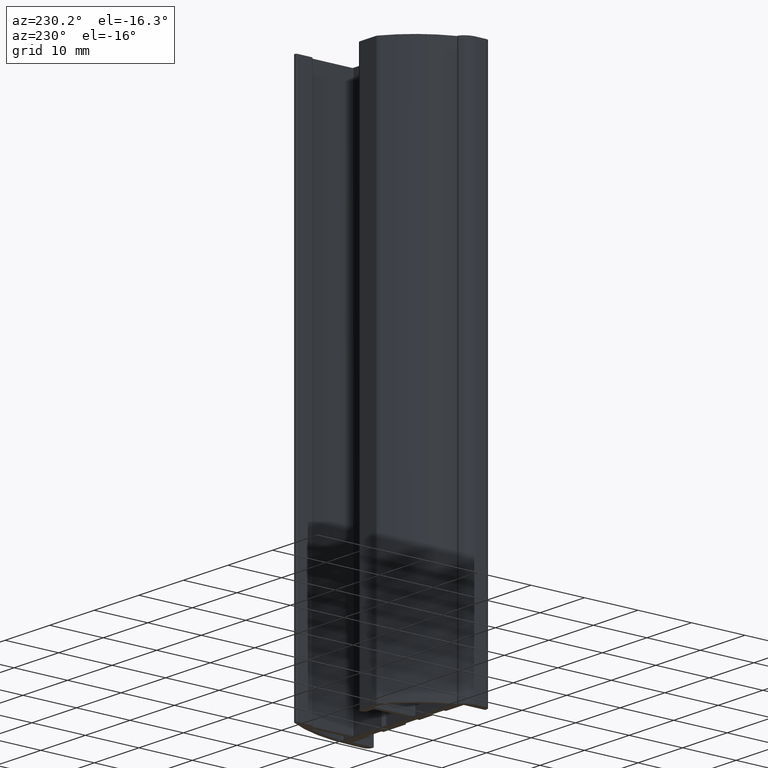
[diagram: clean part render]
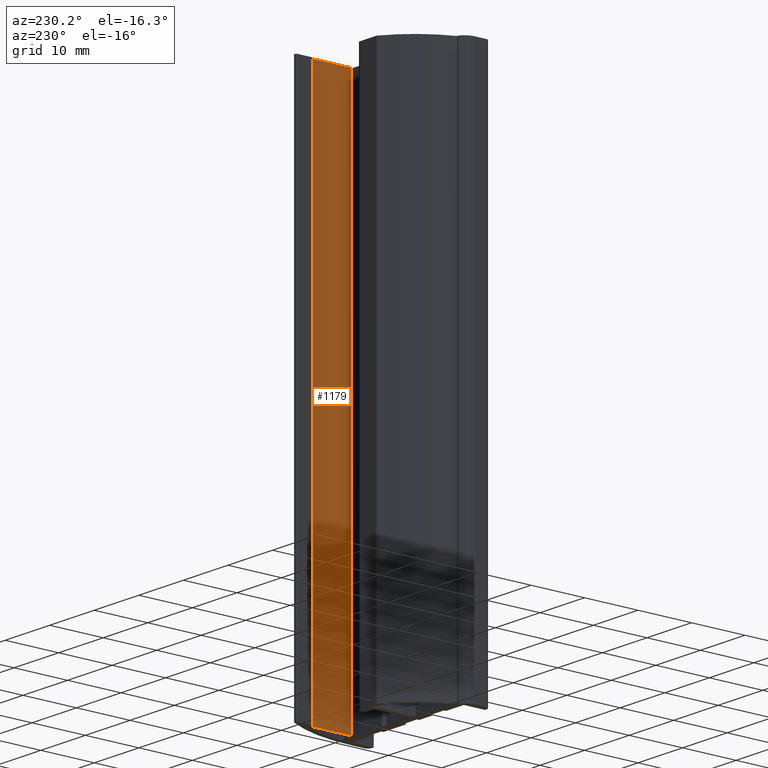
[diagram: same view with one face highlighted and labeled with its STEP entity id]
A machine part, auxiliary view. The second image highlights one B-rep face of the part: STEP entity #1179.
In plain terms, the highlighted planar face has unit normal (-1, 0, 0).
Its self-contained STEP definition (entity closure, byte-faithful):
#134=FACE_OUTER_BOUND('',#195,.T.);
#195=EDGE_LOOP('',(#1008,#1009,#1010,#1011));
#255=LINE('',#1786,#384);
#323=LINE('',#1943,#452);
#324=LINE('',#1946,#453);
#325=LINE('',#1947,#454);
#384=VECTOR('',#1430,7.30000039828612);
#452=VECTOR('',#1594,100.);
#453=VECTOR('',#1597,7.30000039828612);
#454=VECTOR('',#1598,100.);
#528=VERTEX_POINT('',#1783);
#529=VERTEX_POINT('',#1785);
#570=VERTEX_POINT('',#1941);
#571=VERTEX_POINT('',#1945);
#656=EDGE_CURVE('',#528,#529,#255,.T.);
#735=EDGE_CURVE('',#528,#570,#323,.T.);
#736=EDGE_CURVE('',#571,#570,#324,.T.);
#737=EDGE_CURVE('',#529,#571,#325,.T.);
#1008=ORIENTED_EDGE('',*,*,#735,.T.);
#1009=ORIENTED_EDGE('',*,*,#736,.F.);
#1010=ORIENTED_EDGE('',*,*,#737,.F.);
#1011=ORIENTED_EDGE('',*,*,#656,.F.);
#1122=PLANE('',#1280);
#1179=ADVANCED_FACE('',(#134),#1122,.T.);
#1280=AXIS2_PLACEMENT_3D('',#1944,#1595,#1596);
#1430=DIRECTION('',(0.,1.,0.));
#1594=DIRECTION('',(0.,0.,1.));
#1595=DIRECTION('center_axis',(-1.,0.,0.));
#1596=DIRECTION('ref_axis',(0.,-1.,0.));
#1597=DIRECTION('',(0.,-1.,0.));
#1598=DIRECTION('',(0.,0.,1.));
#1783=CARTESIAN_POINT('',(9.89999974563092,-3.05000000000041,-50.));
#1785=CARTESIAN_POINT('',(9.89999974563092,4.25000039828571,-50.));
#1786=CARTESIAN_POINT('',(9.89999974563092,4.25000039828571,-50.));
#1941=CARTESIAN_POINT('',(9.89999974563092,-3.05000000000041,50.));
#1943=CARTESIAN_POINT('',(9.89999974563092,-3.05000000000041,0.));
#1944=CARTESIAN_POINT('Origin',(9.89999974563092,4.25000039828571,0.));
#1945=CARTESIAN_POINT('',(9.89999974563092,4.25000039828571,50.));
#1946=CARTESIAN_POINT('',(9.89999974563092,4.25000039828571,50.));
#1947=CARTESIAN_POINT('',(9.89999974563092,4.25000039828571,0.));